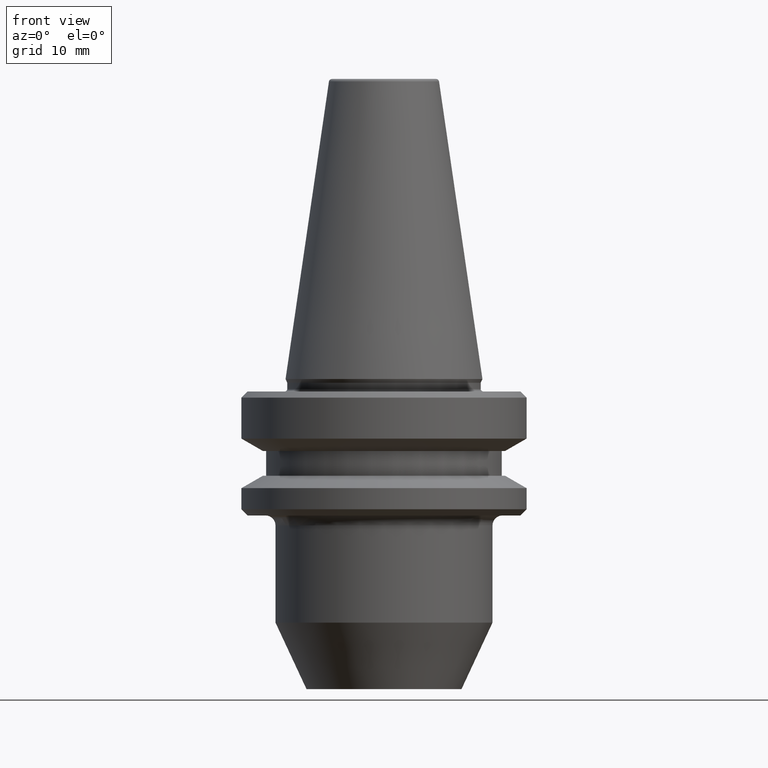
[diagram: clean part render]
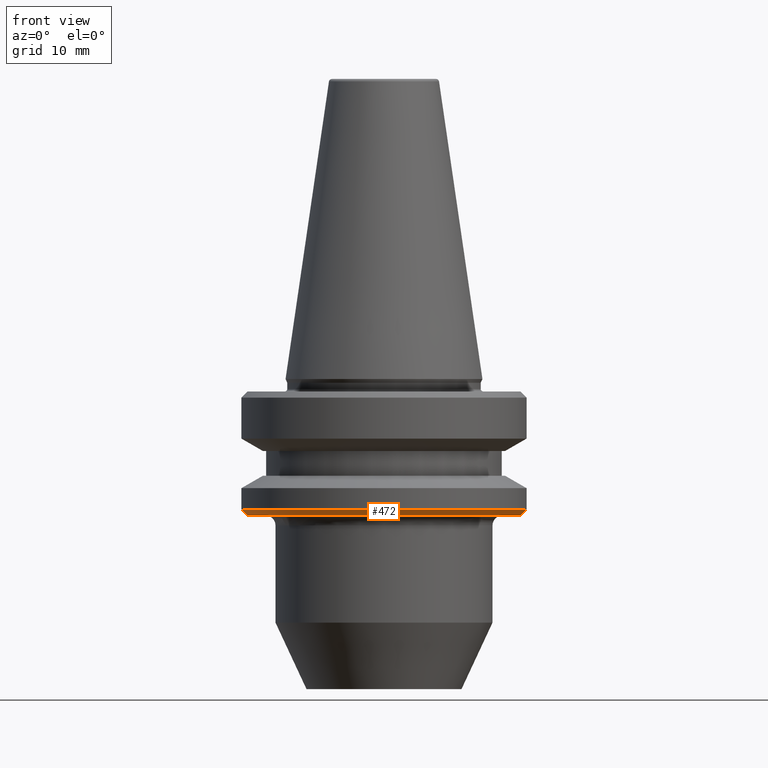
[diagram: same view with one face highlighted and labeled with its STEP entity id]
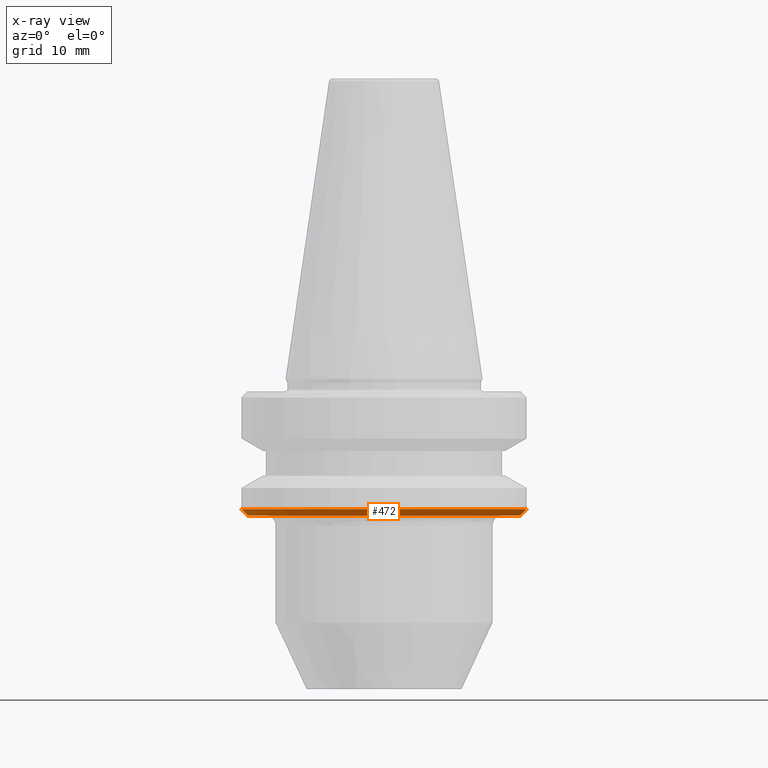
[diagram: x-ray of the same camera — body ghosted, the highlighted face saturated]
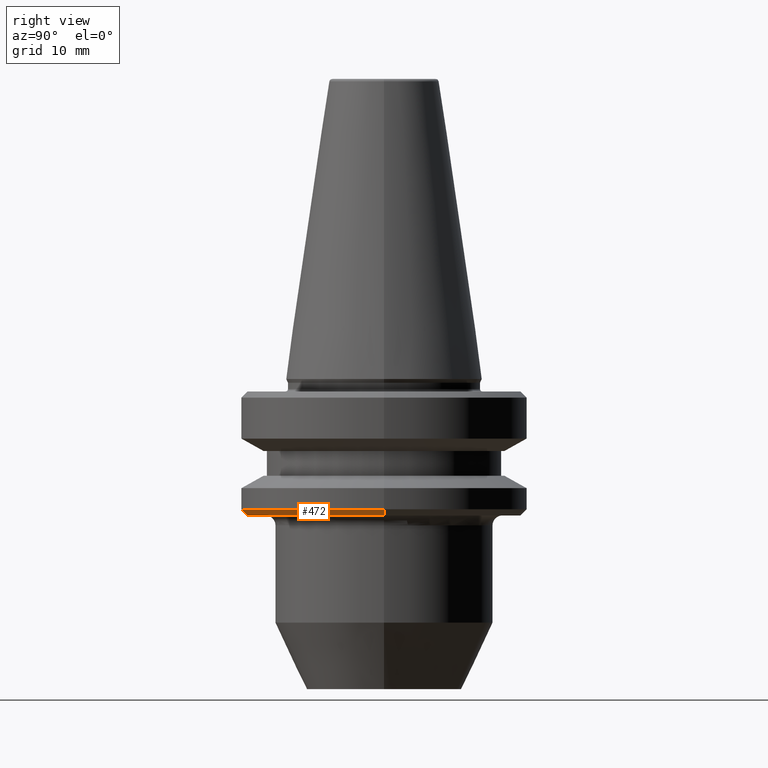
[diagram: same view with one face highlighted and labeled with its STEP entity id]
A machine part, front view. The second image highlights one B-rep face of the part: STEP entity #472.
The next image is the same camera in x-ray: the body ghosted, the highlighted face saturated — about 0% of this face is hidden behind the body in this view.
A second angle (right view) of the same face is appended — the face is thin or edge-on in the first view.
In plain terms, the highlighted conical surface has half-angle 45 deg.
Its self-contained STEP definition (entity closure, byte-faithful):
#35 = VERTEX_POINT ( 'NONE', #695 ) ;
#45 = EDGE_CURVE ( 'NONE', #35, #905, #546, .T. ) ;
#58 = CARTESIAN_POINT ( 'NONE',  ( 0.0000000000000000000, 0.0000000000000000000, -21.99999999999978300 ) ) ;
#59 = ORIENTED_EDGE ( 'NONE', *, *, #997, .F. ) ;
#74 = DIRECTION ( 'NONE',  ( -0.0000000000000000000, -0.0000000000000000000, 1.000000000000000000 ) ) ;
#88 = DIRECTION ( 'NONE',  ( 1.000000000000000000, 0.0000000000000000000, 0.0000000000000000000 ) ) ;
#120 = ORIENTED_EDGE ( 'NONE', *, *, #428, .F. ) ;
#142 = DIRECTION ( 'NONE',  ( 0.7071067811865474600, 0.0000000000000000000, 0.7071067811865475700 ) ) ;
#166 = AXIS2_PLACEMENT_3D ( 'NONE', #58, #581, #386 ) ;
#236 = EDGE_LOOP ( 'NONE', ( #120, #425, #540, #59 ) ) ;
#241 = DIRECTION ( 'NONE',  ( -0.7071067811865474600, 8.659560562354931600E-017, 0.7071067811865475700 ) ) ;
#272 = CIRCLE ( 'NONE', #915, 23.00000000000002100 ) ;
#296 = CARTESIAN_POINT ( 'NONE',  ( -23.00000000000002100, 2.816687638038915100E-015, -20.99999999999989300 ) ) ;
#313 = CARTESIAN_POINT ( 'NONE',  ( -22.00000000000013100, 2.755455298081553800E-015, -21.99999999999978300 ) ) ;
#337 = CARTESIAN_POINT ( 'NONE',  ( 0.0000000000000000000, 0.0000000000000000000, -20.99999999999989300 ) ) ;
#386 = DIRECTION ( 'NONE',  ( 1.000000000000000000, 0.0000000000000000000, 0.0000000000000000000 ) ) ;
#425 = ORIENTED_EDGE ( 'NONE', *, *, #948, .T. ) ;
#428 = EDGE_CURVE ( 'NONE', #639, #902, #601, .T. ) ;
#451 = DIRECTION ( 'NONE',  ( -0.0000000000000000000, -0.0000000000000000000, 1.000000000000000000 ) ) ;
#472 = ADVANCED_FACE ( 'NONE', ( #557 ), #930, .T. ) ;
#505 = CIRCLE ( 'NONE', #166, 22.00000000000013100 ) ;
#540 = ORIENTED_EDGE ( 'NONE', *, *, #45, .T. ) ;
#546 = LINE ( 'NONE', #841, #952 ) ;
#557 = FACE_OUTER_BOUND ( 'NONE', #236, .T. ) ;
#574 = CARTESIAN_POINT ( 'NONE',  ( 23.00000000000002100, 0.0000000000000000000, -20.99999999999989300 ) ) ;
#581 = DIRECTION ( 'NONE',  ( -0.0000000000000000000, -0.0000000000000000000, 1.000000000000000000 ) ) ;
#601 = LINE ( 'NONE', #728, #793 ) ;
#639 = VERTEX_POINT ( 'NONE', #313 ) ;
#695 = CARTESIAN_POINT ( 'NONE',  ( 22.00000000000013100, 0.0000000000000000000, -21.99999999999978300 ) ) ;
#728 = CARTESIAN_POINT ( 'NONE',  ( -22.00000000000013100, 2.694222958124193000E-015, -21.99999999999978300 ) ) ;
#757 = AXIS2_PLACEMENT_3D ( 'NONE', #788, #74, #88 ) ;
#788 = CARTESIAN_POINT ( 'NONE',  ( 0.0000000000000000000, 0.0000000000000000000, -21.99999999999978300 ) ) ;
#793 = VECTOR ( 'NONE', #241, 1000.000000000000000 ) ;
#794 = DIRECTION ( 'NONE',  ( 1.000000000000000000, 0.0000000000000000000, 0.0000000000000000000 ) ) ;
#841 = CARTESIAN_POINT ( 'NONE',  ( 22.00000000000013100, 0.0000000000000000000, -21.99999999999978300 ) ) ;
#902 = VERTEX_POINT ( 'NONE', #296 ) ;
#905 = VERTEX_POINT ( 'NONE', #574 ) ;
#915 = AXIS2_PLACEMENT_3D ( 'NONE', #337, #451, #794 ) ;
#930 = CONICAL_SURFACE ( 'NONE', #757, 22.00000000000013100, 0.7853981633974482800 ) ;
#948 = EDGE_CURVE ( 'NONE', #639, #35, #505, .T. ) ;
#952 = VECTOR ( 'NONE', #142, 1000.000000000000000 ) ;
#997 = EDGE_CURVE ( 'NONE', #902, #905, #272, .T. ) ;